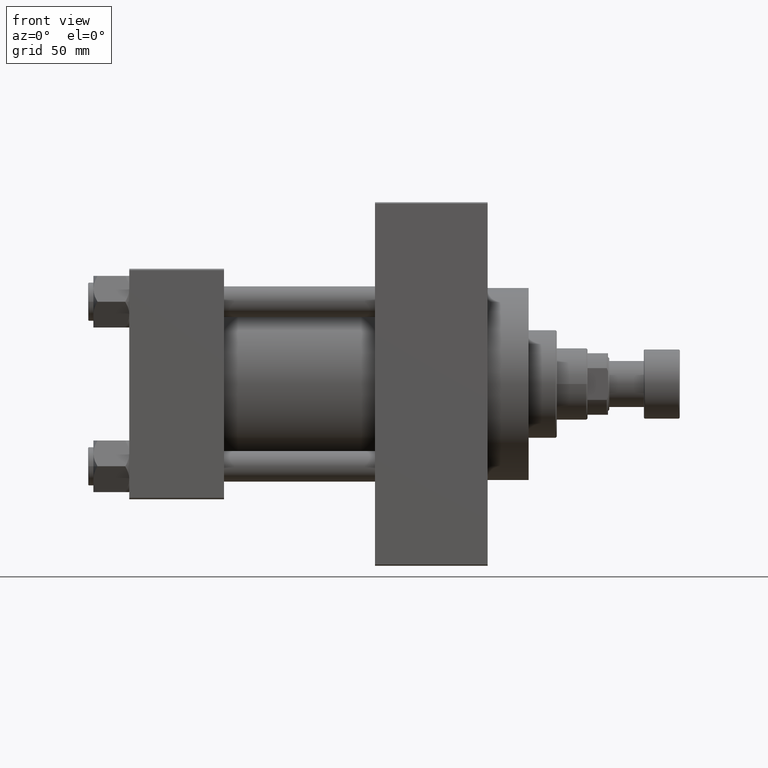
[diagram: clean part render]
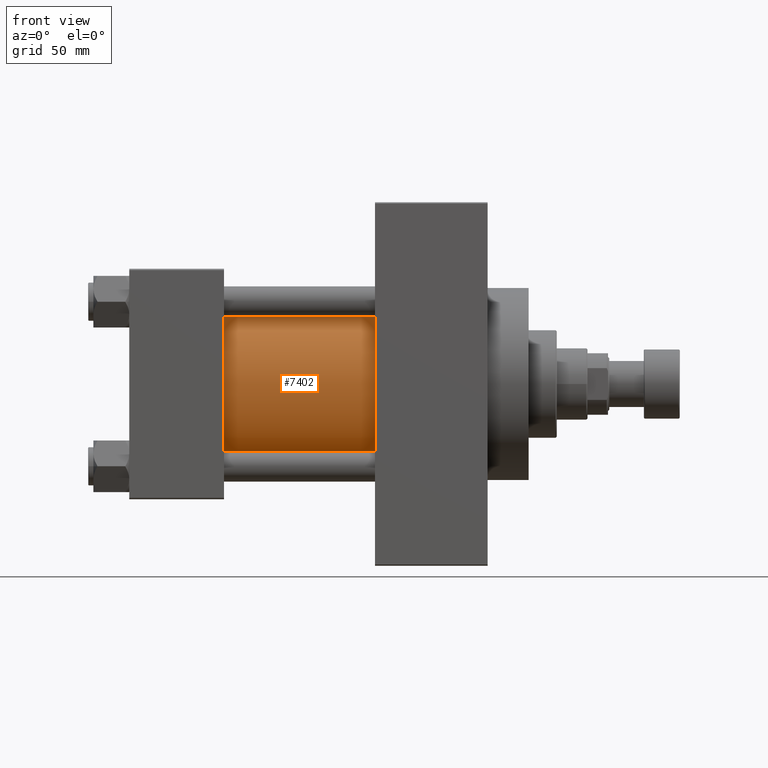
[diagram: same view with one face highlighted and labeled with its STEP entity id]
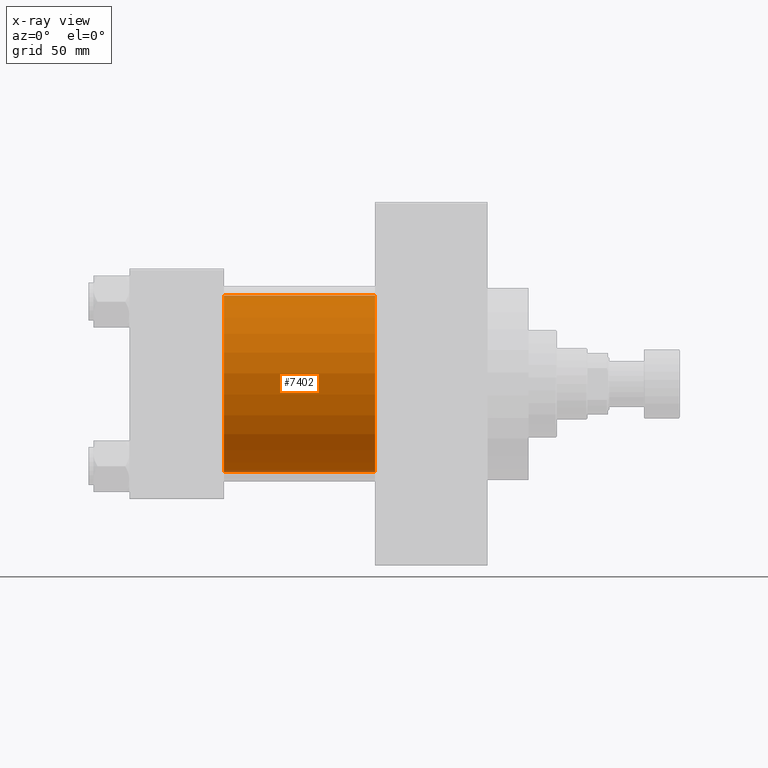
[diagram: x-ray of the same camera — body ghosted, the highlighted face saturated]
A machine part, front view. The second image highlights one B-rep face of the part: STEP entity #7402.
The next image is the same camera in x-ray: the body ghosted, the highlighted face saturated — about 2% of this face is hidden behind the body in this view.
In plain terms, the highlighted cylindrical surface (partial cylindrical patch) has radius 34.5 mm, axis along (-1, -0, -0).
Its self-contained STEP definition (entity closure, byte-faithful):
#1038 = VERTEX_POINT ( 'NONE', #1784 ) ;
#1784 = CARTESIAN_POINT ( 'NONE',  ( 96.00000000000000000, -2.602085213965210642E-15, 34.50000000000000000 ) ) ;
#3107 = CARTESIAN_POINT ( 'NONE',  ( 96.00000000000000000, -2.602085213965210642E-15, 0.000000000000000000 ) ) ;
#3402 = DIRECTION ( 'NONE',  ( 1.000000000000000000, 0.000000000000000000, 0.000000000000000000 ) ) ;
#6540 = LINE ( 'NONE', #36424, #27921 ) ;
#7402 = ADVANCED_FACE ( 'NONE', ( #17590 ), #25294, .T. ) ;
#8057 = EDGE_CURVE ( 'NONE', #32255, #16607, #44964, .T. ) ;
#9228 = CARTESIAN_POINT ( 'NONE',  ( 96.00000000000000000, 1.622946243093158675E-15, -34.50000000000000000 ) ) ;
#10481 = CIRCLE ( 'NONE', #45863, 34.50000000000000000 ) ;
#11047 = CIRCLE ( 'NONE', #12575, 34.50000000000000000 ) ;
#11084 = CARTESIAN_POINT ( 'NONE',  ( 37.00000000000000000, -2.602085213965210642E-15, 34.50000000000000000 ) ) ;
#12575 = AXIS2_PLACEMENT_3D ( 'NONE', #29434, #3402, #33052 ) ;
#12841 = DIRECTION ( 'NONE',  ( -1.000000000000000000, -0.000000000000000000, -0.000000000000000000 ) ) ;
#15365 = EDGE_LOOP ( 'NONE', ( #29825, #26631, #28776, #45292 ) ) ;
#16586 = DIRECTION ( 'NONE',  ( 0.000000000000000000, 0.000000000000000000, 1.000000000000000000 ) ) ;
#16607 = VERTEX_POINT ( 'NONE', #31612 ) ;
#17590 = FACE_OUTER_BOUND ( 'NONE', #15365, .T. ) ;
#20447 = CARTESIAN_POINT ( 'NONE',  ( 37.00000000000000000, -2.602085213965210642E-15, 0.000000000000000000 ) ) ;
#21331 = VECTOR ( 'NONE', #12841, 1000.000000000000000 ) ;
#25050 = DIRECTION ( 'NONE',  ( -1.000000000000000000, -0.000000000000000000, -0.000000000000000000 ) ) ;
#25294 = CYLINDRICAL_SURFACE ( 'NONE', #40538, 34.50000000000000000 ) ;
#26631 = ORIENTED_EDGE ( 'NONE', *, *, #36433, .F. ) ;
#27921 = VECTOR ( 'NONE', #42933, 1000.000000000000000 ) ;
#28190 = DIRECTION ( 'NONE',  ( 0.000000000000000000, 0.000000000000000000, 1.000000000000000000 ) ) ;
#28776 = ORIENTED_EDGE ( 'NONE', *, *, #35538, .T. ) ;
#29434 = CARTESIAN_POINT ( 'NONE',  ( 96.00000000000000000, -2.602085213965210642E-15, 0.000000000000000000 ) ) ;
#29825 = ORIENTED_EDGE ( 'NONE', *, *, #8057, .F. ) ;
#31612 = CARTESIAN_POINT ( 'NONE',  ( 37.00000000000000000, 1.622946243093158675E-15, -34.50000000000000000 ) ) ;
#32255 = VERTEX_POINT ( 'NONE', #39496 ) ;
#33052 = DIRECTION ( 'NONE',  ( 0.000000000000000000, 0.000000000000000000, -1.000000000000000000 ) ) ;
#35538 = EDGE_CURVE ( 'NONE', #1038, #43184, #6540, .T. ) ;
#36424 = CARTESIAN_POINT ( 'NONE',  ( 96.00000000000000000, -2.602085213965210642E-15, 34.50000000000000000 ) ) ;
#36433 = EDGE_CURVE ( 'NONE', #1038, #32255, #11047, .T. ) ;
#38506 = DIRECTION ( 'NONE',  ( 1.000000000000000000, -0.000000000000000000, 0.000000000000000000 ) ) ;
#39496 = CARTESIAN_POINT ( 'NONE',  ( 96.00000000000000000, 1.622946243093158675E-15, -34.50000000000000000 ) ) ;
#40538 = AXIS2_PLACEMENT_3D ( 'NONE', #3107, #25050, #28190 ) ;
#42933 = DIRECTION ( 'NONE',  ( -1.000000000000000000, -0.000000000000000000, -0.000000000000000000 ) ) ;
#43184 = VERTEX_POINT ( 'NONE', #11084 ) ;
#44964 = LINE ( 'NONE', #9228, #21331 ) ;
#45292 = ORIENTED_EDGE ( 'NONE', *, *, #47516, .T. ) ;
#45863 = AXIS2_PLACEMENT_3D ( 'NONE', #20447, #38506, #16586 ) ;
#47516 = EDGE_CURVE ( 'NONE', #43184, #16607, #10481, .T. ) ;